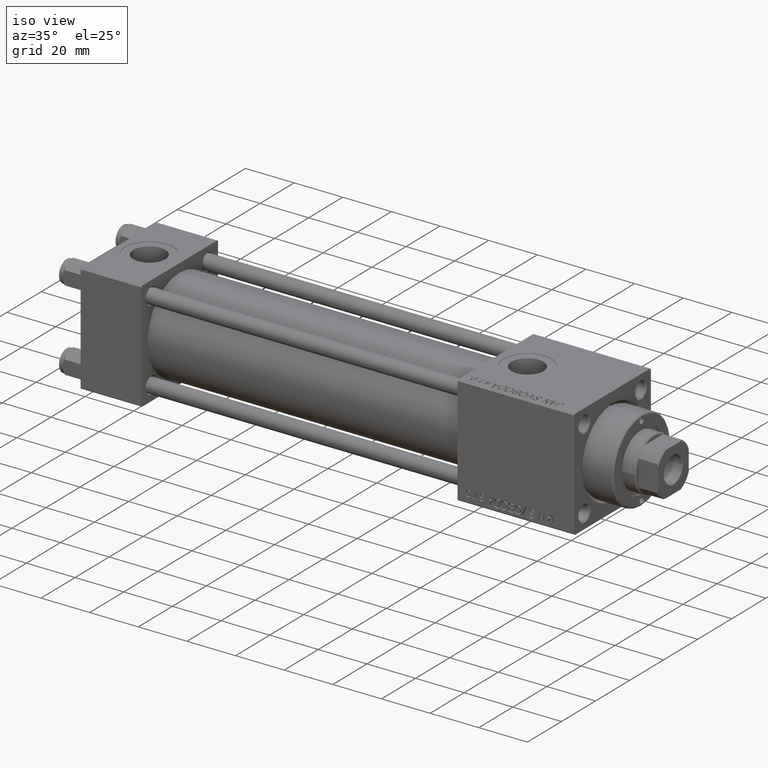
[diagram: clean part render]
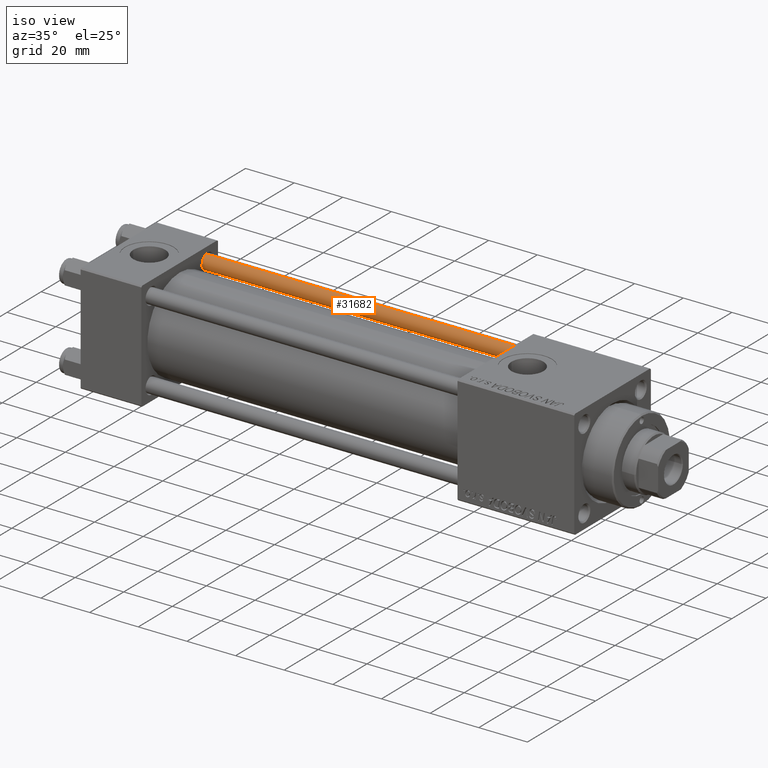
[diagram: same view with one face highlighted and labeled with its STEP entity id]
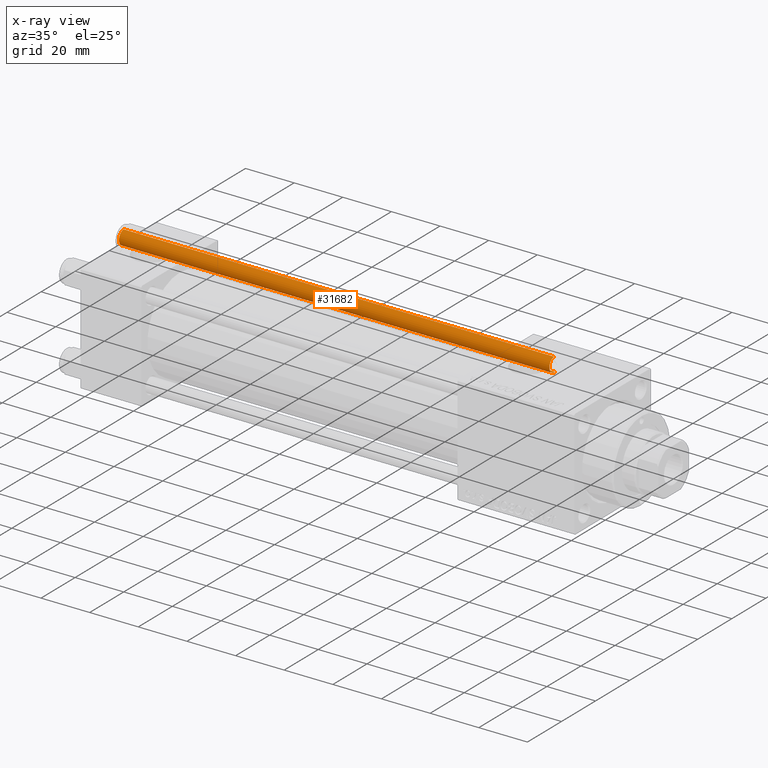
[diagram: x-ray of the same camera — body ghosted, the highlighted face saturated]
A machine part, iso view. The second image highlights one B-rep face of the part: STEP entity #31682.
The next image is the same camera in x-ray: the body ghosted, the highlighted face saturated — about 0% of this face is hidden behind the body in this view.
In plain terms, the highlighted cylindrical surface (edge-blend (fillet) strip) has radius 3 mm, axis along (-1, 0, 0).
Its self-contained STEP definition (entity closure, byte-faithful):
#294 = VERTEX_POINT ( 'NONE', #14816 ) ;
#1521 = DIRECTION ( 'NONE',  ( -0.000000000000000000, -0.000000000000000000, -1.000000000000000000 ) ) ;
#1864 = CARTESIAN_POINT ( 'NONE',  ( 0.000000000000000000, 0.000000000000000000, 177.5000000000000000 ) ) ;
#2329 = DIRECTION ( 'NONE',  ( 1.000000000000000000, 0.000000000000000000, 0.000000000000000000 ) ) ;
#4386 = CIRCLE ( 'NONE', #8458, 3.000000000000000444 ) ;
#4631 = CIRCLE ( 'NONE', #8701, 3.000000000000000444 ) ;
#5339 = CARTESIAN_POINT ( 'NONE',  ( 0.000000000000000000, 0.000000000000000000, 178.0000000000000000 ) ) ;
#7070 = LINE ( 'NONE', #22587, #19342 ) ;
#8458 = AXIS2_PLACEMENT_3D ( 'NONE', #21670, #41015, #2329 ) ;
#8701 = AXIS2_PLACEMENT_3D ( 'NONE', #1864, #36733, #32664 ) ;
#13535 = EDGE_CURVE ( 'NONE', #17693, #48163, #4386, .T. ) ;
#14816 = CARTESIAN_POINT ( 'NONE',  ( 3.000000000000000444, 3.673940397442060361E-16, 177.5000000000000000 ) ) ;
#16809 = CARTESIAN_POINT ( 'NONE',  ( -3.000000000000000444, 0.000000000000000000, 178.0000000000000000 ) ) ;
#17693 = VERTEX_POINT ( 'NONE', #43125 ) ;
#18370 = ORIENTED_EDGE ( 'NONE', *, *, #30786, .T. ) ;
#19342 = VECTOR ( 'NONE', #38121, 1000.000000000000000 ) ;
#19852 = DIRECTION ( 'NONE',  ( -0.000000000000000000, -0.000000000000000000, -1.000000000000000000 ) ) ;
#21615 = ORIENTED_EDGE ( 'NONE', *, *, #31045, .F. ) ;
#21670 = CARTESIAN_POINT ( 'NONE',  ( 0.000000000000000000, 0.000000000000000000, 0.5000000000000281997 ) ) ;
#22020 = CARTESIAN_POINT ( 'NONE',  ( 3.000000000000000444, 3.673940397442060361E-16, 0.5000000000000281997 ) ) ;
#22587 = CARTESIAN_POINT ( 'NONE',  ( 3.000000000000000444, 3.673940397442060361E-16, 178.0000000000000000 ) ) ;
#22778 = VERTEX_POINT ( 'NONE', #38678 ) ;
#25000 = VECTOR ( 'NONE', #19852, 1000.000000000000000 ) ;
#25532 = EDGE_CURVE ( 'NONE', #294, #22778, #4631, .T. ) ;
#30786 = EDGE_CURVE ( 'NONE', #22778, #17693, #36378, .T. ) ;
#31045 = EDGE_CURVE ( 'NONE', #294, #48163, #7070, .T. ) ;
#31563 = DIRECTION ( 'NONE',  ( -1.000000000000000000, 0.000000000000000000, 0.000000000000000000 ) ) ;
#31682 = ADVANCED_FACE ( 'NONE', ( #47850 ), #36641, .T. ) ;
#32664 = DIRECTION ( 'NONE',  ( 1.000000000000000000, 0.000000000000000000, 0.000000000000000000 ) ) ;
#32708 = ORIENTED_EDGE ( 'NONE', *, *, #25532, .T. ) ;
#36378 = LINE ( 'NONE', #16809, #25000 ) ;
#36641 = CYLINDRICAL_SURFACE ( 'NONE', #38850, 3.000000000000000444 ) ;
#36733 = DIRECTION ( 'NONE',  ( 0.000000000000000000, 0.000000000000000000, -1.000000000000000000 ) ) ;
#38121 = DIRECTION ( 'NONE',  ( -0.000000000000000000, -0.000000000000000000, -1.000000000000000000 ) ) ;
#38678 = CARTESIAN_POINT ( 'NONE',  ( -3.000000000000000444, 0.000000000000000000, 177.5000000000000000 ) ) ;
#38850 = AXIS2_PLACEMENT_3D ( 'NONE', #5339, #1521, #31563 ) ;
#41015 = DIRECTION ( 'NONE',  ( -0.000000000000000000, -0.000000000000000000, 1.000000000000000000 ) ) ;
#42706 = EDGE_LOOP ( 'NONE', ( #21615, #32708, #18370, #43777 ) ) ;
#43125 = CARTESIAN_POINT ( 'NONE',  ( -3.000000000000000444, 0.000000000000000000, 0.5000000000000281997 ) ) ;
#43777 = ORIENTED_EDGE ( 'NONE', *, *, #13535, .T. ) ;
#47850 = FACE_OUTER_BOUND ( 'NONE', #42706, .T. ) ;
#48163 = VERTEX_POINT ( 'NONE', #22020 ) ;